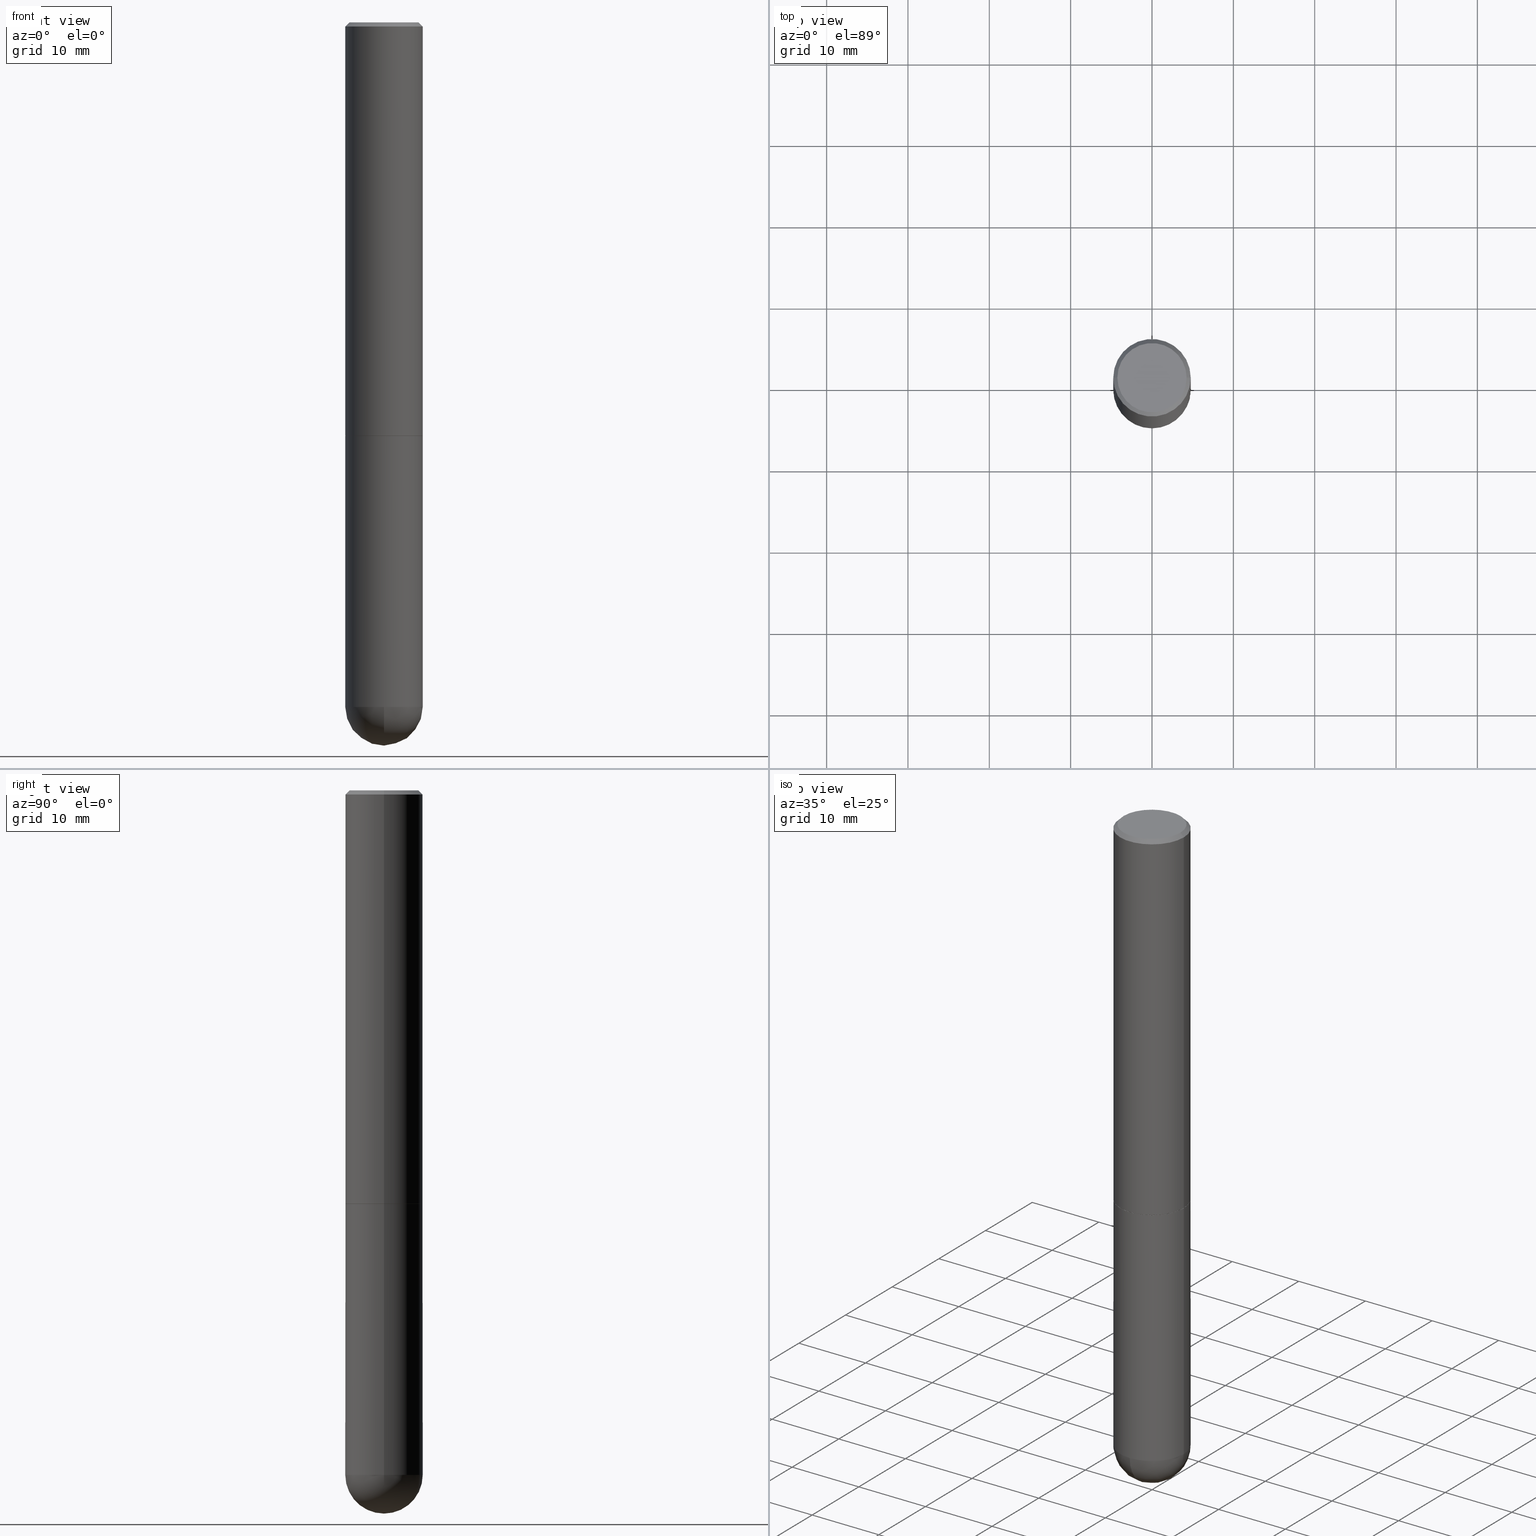
[diagram: canonical four-view strip — front | top / right | iso, engineering-drawing reading convention]
A machine part, canonical four-view strip (front | top / right | iso — engineering-drawing reading convention). The complete STEP part file that produces these views, byte-faithful:
ISO-10303-21;
HEADER;
FILE_DESCRIPTION (( 'STEP AP203' ),
    '1' );
FILE_NAME ('34977.STEP',
    '2024-02-21T18:37:31',
    ( '' ),
    ( '' ),
    'SwSTEP 2.0',
    'SolidWorks 2023',
    '' );
FILE_SCHEMA (( 'CONFIG_CONTROL_DESIGN' ));
ENDSEC;

DATA;
#1 = DIRECTION ( 'NONE',  ( -2.445468806185136877E-29, 3.491481338843145188E-15, 1.000000000000000000 ) ) ;
#2 = ORIENTED_EDGE ( 'NONE', *, *, #153, .F. ) ;
#3 = CARTESIAN_POINT ( 'NONE',  ( 0.1875000000000000278, -8.292268179752465385E-15, -1.999999999999999778 ) ) ;
#4 = AXIS2_PLACEMENT_3D ( 'NONE', #218, #41, #311 ) ;
#5 = EDGE_LOOP ( 'NONE', ( #408, #17, #317, #43 ) ) ;
#6 = EDGE_CURVE ( 'NONE', #279, #151, #190, .T. ) ;
#7 = DIRECTION ( 'NONE',  ( -2.445468806185136597E-29, 3.491481338843145583E-15, 1.000000000000000000 ) ) ;
#8 = EDGE_CURVE ( 'NONE', #270, #154, #108, .T. ) ;
#9 = DIRECTION ( 'NONE',  ( -2.445468806185136877E-29, 3.491481338843145188E-15, 1.000000000000000000 ) ) ;
#10 = VECTOR ( 'NONE', #77, 39.37007874015748854 ) ;
#11 = ORIENTED_EDGE ( 'NONE', *, *, #234, .F. ) ;
#12 = LOCAL_TIME ( 13, 37, 31.00000000000000000, #82 ) ;
#13 = PERSON_AND_ORGANIZATION_ROLE ( 'classification_officer' ) ;
#14 = CARTESIAN_POINT ( 'NONE',  ( 7.769495642574377609E-29, -1.203971430305797135E-14, -3.312499999999999556 ) ) ;
#15 = CARTESIAN_POINT ( 'NONE',  ( -0.1874999999999999722, 1.332267629550187651E-15, -9.223003294227946589E-30 ) ) ;
#16 = EDGE_CURVE ( 'NONE', #151, #279, #216, .T. ) ;
#17 = ORIENTED_EDGE ( 'NONE', *, *, #88, .T. ) ;
#18 = VECTOR ( 'NONE', #200, 39.37007874015748143 ) ;
#19 = COORDINATED_UNIVERSAL_TIME_OFFSET ( 5, 0, .BEHIND. ) ;
#20 = ORIENTED_EDGE ( 'NONE', *, *, #378, .F. ) ;
#21 = VERTEX_POINT ( 'NONE', #32 ) ;
#22 = EDGE_LOOP ( 'NONE', ( #343, #159, #142, #384 ) ) ;
#23 = AXIS2_PLACEMENT_3D ( 'NONE', #14, #249, #365 ) ;
#24 =( GEOMETRIC_REPRESENTATION_CONTEXT ( 3 ) GLOBAL_UNCERTAINTY_ASSIGNED_CONTEXT ( ( #155 ) ) GLOBAL_UNIT_ASSIGNED_CONTEXT ( ( #199, #168, #162 ) ) REPRESENTATION_CONTEXT ( 'NONE', 'WORKASPACE' ) );
#25 = PERSON_AND_ORGANIZATION_ROLE ( 'design_owner' ) ;
#26 = ORIENTED_EDGE ( 'NONE', *, *, #75, .F. ) ;
#27 = CARTESIAN_POINT ( 'NONE',  ( -6.263108486011318528E-46, 8.942059022282683748E-32, 2.561107494060246767E-17 ) ) ;
#28 = PERSON_AND_ORGANIZATION ( #409, #292 ) ;
#29 = ORIENTED_EDGE ( 'NONE', *, *, #16, .T. ) ;
#30 = ADVANCED_FACE ( 'NONE', ( #380 ), #262, .T. ) ;
#31 = DIRECTION ( 'NONE',  ( -2.445468806185136597E-29, 3.491481338843145583E-15, 1.000000000000000000 ) ) ;
#32 = CARTESIAN_POINT ( 'NONE',  ( 0.1864999999999999991, -8.285285217074779370E-15, -2.000000000000000000 ) ) ;
#33 = LINE ( 'NONE', #349, #336 ) ;
#34 = PRODUCT_DEFINITION_SHAPE ( 'NONE', 'NONE',  #201 ) ;
#35 = ORIENTED_EDGE ( 'NONE', *, *, #226, .F. ) ;
#36 = CARTESIAN_POINT ( 'NONE',  ( -0.1875000000000000278, -7.941979676751916286E-15, -1.999999999999999778 ) ) ;
#37 = PLANE ( 'NONE',  #91 ) ;
#38 = AXIS2_PLACEMENT_3D ( 'NONE', #405, #286, #129 ) ;
#39 = LOCAL_TIME ( 13, 37, 31.00000000000000000, #243 ) ;
#40 = CARTESIAN_POINT ( 'NONE',  ( -0.1874999999999999722, 1.239475875289311710E-15, -0.02000000000000003858 ) ) ;
#41 = DIRECTION ( 'NONE',  ( -2.445468806185136597E-29, 3.491481338843145583E-15, 1.000000000000000000 ) ) ;
#42 = CARTESIAN_POINT ( 'NONE',  ( 8.100615420488263856E-29, -1.156553193491791947E-14, -3.312499999999999556 ) ) ;
#43 = ORIENTED_EDGE ( 'NONE', *, *, #229, .F. ) ;
#44 = ADVANCED_FACE ( 'NONE', ( #245 ), #184, .T. ) ;
#45 = DATE_AND_TIME ( #121, #80 ) ;
#46 = CIRCLE ( 'NONE', #160, 0.1874999999999999722 ) ;
#47 = CIRCLE ( 'NONE', #282, 0.1874999999999999722 ) ;
#48 = CYLINDRICAL_SURFACE ( 'NONE', #293, 0.1874999999999999722 ) ;
#49 = APPROVAL_ROLE ( '' ) ;
#50 = DIRECTION ( 'NONE',  ( 1.000000000000000000, -6.982962677686266711E-15, 4.876176775795935793E-29 ) ) ;
#51 = ORIENTED_EDGE ( 'NONE', *, *, #8, .F. ) ;
#52 = VERTEX_POINT ( 'NONE', #274 ) ;
#53 = PERSON_AND_ORGANIZATION ( #409, #292 ) ;
#54 = ORIENTED_EDGE ( 'NONE', *, *, #156, .T. ) ;
#55 = ORIENTED_EDGE ( 'NONE', *, *, #166, .T. ) ;
#56 = ADVANCED_FACE ( 'NONE', ( #361 ), #110, .T. ) ;
#57 = AXIS2_PLACEMENT_3D ( 'NONE', #323, #164, #377 ) ;
#58 = DIRECTION ( 'NONE',  ( 1.000000000000000000, -6.982962677686268288E-15, 0.000000000000000000 ) ) ;
#59 = EDGE_LOOP ( 'NONE', ( #312, #316 ) ) ;
#60 = DIRECTION ( 'NONE',  ( -2.445468806185136597E-29, 3.491481338843145583E-15, 1.000000000000000000 ) ) ;
#61 = EDGE_CURVE ( 'NONE', #309, #186, #298, .T. ) ;
#62 = APPLICATION_CONTEXT ( 'configuration controlled 3d designs of mechanical parts and assemblies' ) ;
#63 = CARTESIAN_POINT ( 'NONE',  ( 0.1875000000000001110, -1.309305502066175797E-15, 9.142831454617385217E-30 ) ) ;
#64 = APPLICATION_PROTOCOL_DEFINITION ( 'international standard', 'config_control_design', 1994, #97 ) ;
#65 = CIRCLE ( 'NONE', #372, 0.1864999999999999991 ) ;
#66 = CC_DESIGN_APPROVAL ( #375, ( #137 ) ) ;
#67 = CARTESIAN_POINT ( 'NONE',  ( 8.100615420488263856E-29, -1.156553193491791947E-14, -3.312499999999999556 ) ) ;
#68 = PERSON_AND_ORGANIZATION ( #409, #292 ) ;
#69 = CC_DESIGN_DATE_AND_TIME_ASSIGNMENT ( #149, #334, ( #306 ) ) ;
#70 = CARTESIAN_POINT ( 'NONE',  ( 4.888492143564087030E-29, -6.979471196347446580E-15, -1.998999999999999666 ) ) ;
#71 = DATE_AND_TIME ( #127, #39 ) ;
#72 = CARTESIAN_POINT ( 'NONE',  ( 0.1874999999999999722, -1.356173001359025269E-15, -0.02000000000000003858 ) ) ;
#73 = ADVANCED_FACE ( 'NONE', ( #181 ), #301, .F. ) ;
#74 = DIRECTION ( 'NONE',  ( 2.438088387897960049E-29, -3.491481338843145188E-15, -1.000000000000000000 ) ) ;
#75 = EDGE_CURVE ( 'NONE', #214, #86, #46, .T. ) ;
#76 = DIRECTION ( 'NONE',  ( -7.105427357601001070E-15, -1.000000000000000000, 0.000000000000000000 ) ) ;
#77 = DIRECTION ( 'NONE',  ( 0.7071067811865232589, -2.468850131082003836E-15, 0.7071067811865715536 ) ) ;
#78 = CARTESIAN_POINT ( 'NONE',  ( 7.769495642574377609E-29, -1.203971430305797135E-14, -3.312499999999999556 ) ) ;
#79 = AXIS2_PLACEMENT_3D ( 'NONE', #261, #173, #325 ) ;
#80 = LOCAL_TIME ( 13, 37, 31.00000000000000000, #19 ) ;
#81 = CARTESIAN_POINT ( 'NONE',  ( 0.000000000000000000, 0.000000000000000000, 0.000000000000000000 ) ) ;
#82 = COORDINATED_UNIVERSAL_TIME_OFFSET ( 5, 0, .BEHIND. ) ;
#83 = ADVANCED_FACE ( 'NONE', ( #358 ), #132, .F. ) ;
#84 = VERTEX_POINT ( 'NONE', #284 ) ;
#85 = EDGE_CURVE ( 'NONE', #236, #318, #289, .T. ) ;
#86 = VERTEX_POINT ( 'NONE', #259 ) ;
#87 = AXIS2_PLACEMENT_3D ( 'NONE', #364, #219, #148 ) ;
#88 = EDGE_CURVE ( 'NONE', #228, #84, #33, .T. ) ;
#89 = CARTESIAN_POINT ( 'NONE',  ( 4.890937612370273194E-29, -6.982962677686291165E-15, -2.000000000000000000 ) ) ;
#90 = CALENDAR_DATE ( 2024, 21, 2 ) ;
#91 = AXIS2_PLACEMENT_3D ( 'NONE', #333, #74, #296 ) ;
#92 = AXIS2_PLACEMENT_3D ( 'NONE', #140, #386, #391 ) ;
#93 = LINE ( 'NONE', #135, #18 ) ;
#94 = CARTESIAN_POINT ( 'NONE',  ( 1.309305502066255275E-15, 0.1874999999999883149, -3.312500000000000444 ) ) ;
#95 = DIRECTION ( 'NONE',  ( -2.445468806185136597E-29, 3.491481338843145583E-15, 1.000000000000000000 ) ) ;
#96 = CARTESIAN_POINT ( 'NONE',  ( 4.890937612370272633E-29, -6.982962677686290376E-15, -1.999999999999999778 ) ) ;
#97 = APPLICATION_CONTEXT ( 'configuration controlled 3d designs of mechanical parts and assemblies' ) ;
#98 = CARTESIAN_POINT ( 'NONE',  ( 4.890937612370282792E-31, -6.982962677686303935E-17, -0.02000000000000003858 ) ) ;
#99 = DIRECTION ( 'NONE',  ( 0.000000000000000000, 0.000000000000000000, 1.000000000000000000 ) ) ;
#100 = PRODUCT ( '34977', '34977', '', ( #359 ) ) ;
#101 = AXIS2_PLACEMENT_3D ( 'NONE', #209, #60, #373 ) ;
#102 = AXIS2_PLACEMENT_3D ( 'NONE', #394, #95, #383 ) ;
#103 = DATE_AND_TIME ( #90, #265 ) ;
#104 = DESIGN_CONTEXT ( 'detailed design', #62, 'design' ) ;
#105 = CARTESIAN_POINT ( 'NONE',  ( 8.100615420488263856E-29, -1.156553193491791947E-14, -3.312499999999999556 ) ) ;
#106 = CARTESIAN_POINT ( 'NONE',  ( 0.000000000000000000, 0.000000000000000000, 0.000000000000000000 ) ) ;
#107 = DIRECTION ( 'NONE',  ( 1.000000000000000000, -6.982962677686263555E-15, 0.000000000000000000 ) ) ;
#108 = CIRCLE ( 'NONE', #247, 0.1875000000000002776 ) ;
#109 = LOCAL_TIME ( 13, 37, 31.00000000000000000, #213 ) ;
#110 = SPHERICAL_SURFACE ( 'NONE', #23, 0.1875000000000002776 ) ;
#111 = EDGE_LOOP ( 'NONE', ( #331, #55, #54, #130 ) ) ;
#112 = CARTESIAN_POINT ( 'NONE',  ( 8.236038227695147558E-29, -1.268288599034905401E-14, -3.500000000000000000 ) ) ;
#113 = APPROVAL_STATUS ( 'not_yet_approved' ) ;
#114 = CYLINDRICAL_SURFACE ( 'NONE', #272, 0.1875000000000001110 ) ;
#115 = ORIENTED_EDGE ( 'NONE', *, *, #378, .T. ) ;
#116 = CARTESIAN_POINT ( 'NONE',  ( 0.000000000000000000, 0.000000000000000000, 0.000000000000000000 ) ) ;
#117 = AXIS2_PLACEMENT_3D ( 'NONE', #89, #347, #58 ) ;
#118 = EDGE_CURVE ( 'NONE', #309, #318, #93, .T. ) ;
#119 = CALENDAR_DATE ( 2024, 21, 2 ) ;
#120 = EDGE_LOOP ( 'NONE', ( #11, #283 ) ) ;
#121 = CALENDAR_DATE ( 2024, 21, 2 ) ;
#122 = AXIS2_PLACEMENT_3D ( 'NONE', #42, #7, #107 ) ;
#123 = CC_DESIGN_SECURITY_CLASSIFICATION ( #306, ( #137 ) ) ;
#124 = ADVANCED_FACE ( 'NONE', ( #237 ), #324, .T. ) ;
#125 = DIRECTION ( 'NONE',  ( -2.445468806185136597E-29, 3.491481338843145583E-15, 1.000000000000000000 ) ) ;
#126 = APPROVAL_STATUS ( 'not_yet_approved' ) ;
#127 = CALENDAR_DATE ( 2024, 21, 2 ) ;
#128 = CONICAL_SURFACE ( 'NONE', #362, 0.1874999999999999722, 0.7853981633974473908 ) ;
#129 = DIRECTION ( 'NONE',  ( 1.000000000000000000, -6.982962677686268288E-15, 0.000000000000000000 ) ) ;
#130 = ORIENTED_EDGE ( 'NONE', *, *, #85, .F. ) ;
#131 = CC_DESIGN_DATE_AND_TIME_ASSIGNMENT ( #328, #350, ( #201 ) ) ;
#132 = PLANE ( 'NONE',  #57 ) ;
#133 = DIRECTION ( 'NONE',  ( 1.000000000000000000, 0.000000000000000000, 0.000000000000000000 ) ) ;
#134 = MANIFOLD_SOLID_BREP ( 'Body-Move/Copy2[1]', #264 ) ;
#135 = CARTESIAN_POINT ( 'NONE',  ( 0.1874999999999999722, -1.356173001359025269E-15, -0.02000000000000003858 ) ) ;
#136 = AXIS2_PLACEMENT_3D ( 'NONE', #70, #125, #370 ) ;
#137 = PRODUCT_DEFINITION_FORMATION_WITH_SPECIFIED_SOURCE ( 'ANY', '', #100, .NOT_KNOWN. ) ;
#138 = CARTESIAN_POINT ( 'NONE',  ( 4.890937612370282792E-31, -6.982962677686303935E-17, -0.02000000000000003858 ) ) ;
#139 = ORIENTED_EDGE ( 'NONE', *, *, #238, .F. ) ;
#140 = CARTESIAN_POINT ( 'NONE',  ( 7.769495642574377609E-29, -1.203971430305797135E-14, -3.312499999999999556 ) ) ;
#141 = CARTESIAN_POINT ( 'NONE',  ( -1.332267629550109160E-15, -0.1875000000000119349, -3.312499999999999112 ) ) ;
#142 = ORIENTED_EDGE ( 'NONE', *, *, #229, .T. ) ;
#143 = LINE ( 'NONE', #387, #314 ) ;
#144 = CIRCLE ( 'NONE', #233, 0.1674999999999999545 ) ;
#145 = CONICAL_SURFACE ( 'NONE', #315, 0.1864999999999999991, 0.7853981633974141952 ) ;
#146 = DIRECTION ( 'NONE',  ( -2.445468806185136597E-29, 3.491481338843145583E-15, 1.000000000000000000 ) ) ;
#147 = EDGE_CURVE ( 'NONE', #186, #309, #144, .T. ) ;
#148 = DIRECTION ( 'NONE',  ( 1.000000000000000000, -6.982962677686266711E-15, 0.000000000000000000 ) ) ;
#149 = DATE_AND_TIME ( #119, #12 ) ;
#150 = DIRECTION ( 'NONE',  ( -2.445468806185136877E-29, 3.491481338843145188E-15, 1.000000000000000000 ) ) ;
#151 = VERTEX_POINT ( 'NONE', #36 ) ;
#152 = CIRCLE ( 'NONE', #122, 0.1874999999999999722 ) ;
#153 = EDGE_CURVE ( 'NONE', #86, #279, #327, .T. ) ;
#154 = VERTEX_POINT ( 'NONE', #94 ) ;
#155 = UNCERTAINTY_MEASURE_WITH_UNIT (LENGTH_MEASURE( 1.000000000000000082E-05 ), #199, 'distance_accuracy_value', 'NONE');
#156 = EDGE_CURVE ( 'NONE', #52, #318, #295, .T. ) ;
#157 = PERSON_AND_ORGANIZATION_ROLE ( 'design_supplier' ) ;
#158 = ORIENTED_EDGE ( 'NONE', *, *, #197, .T. ) ;
#159 = ORIENTED_EDGE ( 'NONE', *, *, #206, .T. ) ;
#160 = AXIS2_PLACEMENT_3D ( 'NONE', #67, #321, #230 ) ;
#161 = CC_DESIGN_APPROVAL ( #194, ( #306 ) ) ;
#162 =( NAMED_UNIT ( * ) SI_UNIT ( $, .STERADIAN. ) SOLID_ANGLE_UNIT ( ) );
#163 = VERTEX_POINT ( 'NONE', #263 ) ;
#164 = DIRECTION ( 'NONE',  ( 2.438088387897960049E-29, -3.491481338843145188E-15, -1.000000000000000000 ) ) ;
#165 = PERSON_AND_ORGANIZATION ( #409, #292 ) ;
#166 = EDGE_CURVE ( 'NONE', #84, #52, #223, .T. ) ;
#167 = CARTESIAN_POINT ( 'NONE',  ( 7.769495642574377609E-29, -1.203971430305797135E-14, -3.312499999999999556 ) ) ;
#168 =( NAMED_UNIT ( * ) PLANE_ANGLE_UNIT ( ) SI_UNIT ( $, .RADIAN. ) );
#169 = ORIENTED_EDGE ( 'NONE', *, *, #220, .F. ) ;
#170 = APPROVAL ( #126, 'UNSPECIFIED' ) ;
#171 = AXIS2_PLACEMENT_3D ( 'NONE', #172, #31, #410 ) ;
#172 = CARTESIAN_POINT ( 'NONE',  ( 4.890937612370273194E-29, -6.982962677686291165E-15, -2.000000000000000000 ) ) ;
#173 = DIRECTION ( 'NONE',  ( -2.445468806185136597E-29, 3.491481338843145583E-15, 1.000000000000000000 ) ) ;
#174 = COORDINATED_UNIVERSAL_TIME_OFFSET ( 5, 0, .BEHIND. ) ;
#175 = ORIENTED_EDGE ( 'NONE', *, *, #6, .T. ) ;
#176 = LINE ( 'NONE', #307, #332 ) ;
#177 = ORIENTED_EDGE ( 'NONE', *, *, #302, .T. ) ;
#178 = VECTOR ( 'NONE', #294, 39.37007874015748143 ) ;
#179 = CARTESIAN_POINT ( 'NONE',  ( -0.1864999999999999991, -5.652502021145481134E-15, -2.000000000000000000 ) ) ;
#180 = ADVANCED_FACE ( 'NONE', ( #381 ), #368, .T. ) ;
#181 = FACE_OUTER_BOUND ( 'NONE', #120, .T. ) ;
#182 = CARTESIAN_POINT ( 'NONE',  ( 0.1864999999999999991, -8.285285217074779370E-15, -2.000000000000000000 ) ) ;
#183 = LINE ( 'NONE', #182, #10 ) ;
#184 = CYLINDRICAL_SURFACE ( 'NONE', #4, 0.1874999999999999722 ) ;
#185 = DIRECTION ( 'NONE',  ( -2.445468806185136597E-29, 3.491481338843145583E-15, 1.000000000000000000 ) ) ;
#186 = VERTEX_POINT ( 'NONE', #244 ) ;
#187 = DIRECTION ( 'NONE',  ( -2.438088387897960049E-29, 3.491481338843145188E-15, 1.000000000000000000 ) ) ;
#188 = EDGE_LOOP ( 'NONE', ( #139, #412, #169, #26 ) ) ;
#189 = PERSON_AND_ORGANIZATION ( #409, #292 ) ;
#190 = CIRCLE ( 'NONE', #253, 0.1875000000000000278 ) ;
#191 = ORIENTED_EDGE ( 'NONE', *, *, #268, .F. ) ;
#192 = ORIENTED_EDGE ( 'NONE', *, *, #393, .F. ) ;
#193 = ORIENTED_EDGE ( 'NONE', *, *, #75, .T. ) ;
#194 = APPROVAL ( #113, 'UNSPECIFIED' ) ;
#195 = ORIENTED_EDGE ( 'NONE', *, *, #393, .T. ) ;
#196 = CIRCLE ( 'NONE', #87, 0.1874999999999999722 ) ;
#197 = EDGE_CURVE ( 'NONE', #52, #84, #256, .T. ) ;
#198 = DIRECTION ( 'NONE',  ( 1.000000000000000000, -6.982962677686265922E-15, 4.876176775795935793E-29 ) ) ;
#199 =( CONVERSION_BASED_UNIT ( 'INCH', #322 ) LENGTH_UNIT ( ) NAMED_UNIT ( #367 ) );
#200 = DIRECTION ( 'NONE',  ( 0.7071067811865469066, -7.319954787623254468E-15, -0.7071067811865482389 ) ) ;
#201 = PRODUCT_DEFINITION ( 'UNKNOWN', '', #137, #104 ) ;
#202 = PERSON_AND_ORGANIZATION ( #409, #292 ) ;
#203 = ORIENTED_EDGE ( 'NONE', *, *, #118, .T. ) ;
#204 = APPROVAL_ROLE ( '' ) ;
#205 = EDGE_LOOP ( 'NONE', ( #399, #396, #339, #398 ) ) ;
#206 = EDGE_CURVE ( 'NONE', #228, #21, #207, .T. ) ;
#207 = CIRCLE ( 'NONE', #117, 0.1864999999999999991 ) ;
#208 = APPROVAL_PERSON_ORGANIZATION ( #202, #375, #371 ) ;
#209 = CARTESIAN_POINT ( 'NONE',  ( 4.890937612370282792E-31, -6.982962677686303935E-17, -0.02000000000000003858 ) ) ;
#210 = PERSON_AND_ORGANIZATION_ROLE ( 'creator' ) ;
#211 = CC_DESIGN_PERSON_AND_ORGANIZATION_ASSIGNMENT ( #379, #25, ( #100 ) ) ;
#212 = DIRECTION ( 'NONE',  ( -0.7071067811865232589, 7.493145998870265808E-15, 0.7071067811865715536 ) ) ;
#213 = COORDINATED_UNIVERSAL_TIME_OFFSET ( 5, 0, .BEHIND. ) ;
#214 = VERTEX_POINT ( 'NONE', #141 ) ;
#215 = DIRECTION ( 'NONE',  ( 1.000000000000000000, -6.982962677686263555E-15, 0.000000000000000000 ) ) ;
#216 = CIRCLE ( 'NONE', #79, 0.1875000000000000278 ) ;
#217 = DIRECTION ( 'NONE',  ( 1.000000000000000000, -6.982962677686268288E-15, 0.000000000000000000 ) ) ;
#218 = CARTESIAN_POINT ( 'NONE',  ( 0.000000000000000000, 0.000000000000000000, 0.000000000000000000 ) ) ;
#219 = DIRECTION ( 'NONE',  ( -2.445468806185136597E-29, 3.491481338843145583E-15, 1.000000000000000000 ) ) ;
#220 = EDGE_CURVE ( 'NONE', #86, #154, #152, .T. ) ;
#221 = DIRECTION ( 'NONE',  ( -1.000000000000000000, 6.982962677686266711E-15, 0.000000000000000000 ) ) ;
#222 = SECURITY_CLASSIFICATION_LEVEL ( 'unclassified' ) ;
#223 = CIRCLE ( 'NONE', #38, 0.1875000000000002776 ) ;
#224 = CIRCLE ( 'NONE', #102, 0.1874999999999999722 ) ;
#225 = DIRECTION ( 'NONE',  ( -2.445468806185136597E-29, 3.491481338843145583E-15, 1.000000000000000000 ) ) ;
#226 = EDGE_CURVE ( 'NONE', #318, #236, #196, .T. ) ;
#227 = ORIENTED_EDGE ( 'NONE', *, *, #153, .T. ) ;
#228 = VERTEX_POINT ( 'NONE', #179 ) ;
#229 = EDGE_CURVE ( 'NONE', #21, #52, #183, .T. ) ;
#230 = DIRECTION ( 'NONE',  ( 1.000000000000000000, -6.982962677686263555E-15, 0.000000000000000000 ) ) ;
#231 = APPROVAL_DATE_TIME ( #103, #375 ) ;
#232 = ORIENTED_EDGE ( 'NONE', *, *, #6, .F. ) ;
#233 = AXIS2_PLACEMENT_3D ( 'NONE', #27, #288, #400 ) ;
#234 = EDGE_CURVE ( 'NONE', #21, #228, #65, .T. ) ;
#235 = CARTESIAN_POINT ( 'NONE',  ( 0.1874999999999999722, -1.309305502066174811E-15, 9.142831454617378210E-30 ) ) ;
#236 = VERTEX_POINT ( 'NONE', #40 ) ;
#237 = FACE_OUTER_BOUND ( 'NONE', #205, .T. ) ;
#238 = EDGE_CURVE ( 'NONE', #270, #214, #346, .T. ) ;
#239 =( LENGTH_UNIT ( ) NAMED_UNIT ( * ) SI_UNIT ( $, .METRE. ) );
#240 = ADVANCED_BREP_SHAPE_REPRESENTATION ( '34977', ( #134, #276, #406 ), #24 ) ;
#241 = DIRECTION ( 'NONE',  ( -1.000000000000000000, 6.982962677686266711E-15, 0.000000000000000000 ) ) ;
#242 = PRODUCT_RELATED_PRODUCT_CATEGORY ( 'detail', '', ( #100 ) ) ;
#243 = COORDINATED_UNIVERSAL_TIME_OFFSET ( 5, 0, .BEHIND. ) ;
#244 = CARTESIAN_POINT ( 'NONE',  ( -0.1674999999999999545, 1.204561061900880455E-15, 2.561107494059416614E-17 ) ) ;
#245 = FACE_OUTER_BOUND ( 'NONE', #388, .T. ) ;
#246 = AXIS2_PLACEMENT_3D ( 'NONE', #106, #146, #50 ) ;
#247 = AXIS2_PLACEMENT_3D ( 'NONE', #167, #287, #403 ) ;
#248 = CARTESIAN_POINT ( 'NONE',  ( 4.890937612370273194E-29, -6.982962677686291165E-15, -2.000000000000000000 ) ) ;
#249 = DIRECTION ( 'NONE',  ( -1.000000000000000000, 6.982962677686266711E-15, -4.883557194083112340E-29 ) ) ;
#250 = SPHERICAL_SURFACE ( 'NONE', #92, 0.1875000000000002776 ) ;
#251 = DIRECTION ( 'NONE',  ( 1.000000000000000000, -6.982962677686266711E-15, 4.875370901645442309E-29 ) ) ;
#252 = LINE ( 'NONE', #15, #369 ) ;
#253 = AXIS2_PLACEMENT_3D ( 'NONE', #96, #320, #353 ) ;
#254 = ORIENTED_EDGE ( 'NONE', *, *, #16, .F. ) ;
#255 = SHAPE_DEFINITION_REPRESENTATION ( #34, #240 ) ;
#256 = CIRCLE ( 'NONE', #136, 0.1875000000000002776 ) ;
#257 = APPROVAL_PERSON_ORGANIZATION ( #189, #194, #49 ) ;
#258 = ADVANCED_FACE ( 'NONE', ( #338 ), #37, .F. ) ;
#259 = CARTESIAN_POINT ( 'NONE',  ( 0.1874999999999999722, -1.058355280836828072E-14, -3.312499999999999556 ) ) ;
#260 = APPROVAL_STATUS ( 'not_yet_approved' ) ;
#261 = CARTESIAN_POINT ( 'NONE',  ( 4.890937612370272633E-29, -6.982962677686290376E-15, -1.999999999999999778 ) ) ;
#262 = CYLINDRICAL_SURFACE ( 'NONE', #246, 0.1875000000000001110 ) ;
#263 = CARTESIAN_POINT ( 'NONE',  ( -0.1874999999999999722, -7.941979676751917864E-15, -3.312499999999999556 ) ) ;
#264 = CLOSED_SHELL ( 'NONE', ( #357, #56, #330, #83, #44 ) ) ;
#265 = LOCAL_TIME ( 13, 37, 31.00000000000000000, #174 ) ;
#266 = ORIENTED_EDGE ( 'NONE', *, *, #342, .F. ) ;
#267 = FACE_OUTER_BOUND ( 'NONE', #291, .T. ) ;
#268 = EDGE_CURVE ( 'NONE', #186, #236, #176, .T. ) ;
#269 = DIRECTION ( 'NONE',  ( -2.445468806185136597E-29, 3.491481338843145583E-15, 1.000000000000000000 ) ) ;
#270 = VERTEX_POINT ( 'NONE', #112 ) ;
#271 = CLOSED_SHELL ( 'NONE', ( #180, #30, #297, #124, #354, #397, #73, #258 ) ) ;
#272 = AXIS2_PLACEMENT_3D ( 'NONE', #116, #225, #366 ) ;
#273 = CARTESIAN_POINT ( 'NONE',  ( 0.1674999999999999545, -1.252653207992878091E-15, 2.561107494061093868E-17 ) ) ;
#274 = CARTESIAN_POINT ( 'NONE',  ( 0.1875000000000002776, -8.288776698413623955E-15, -1.998999999999999666 ) ) ;
#275 = FACE_OUTER_BOUND ( 'NONE', #111, .T. ) ;
#276 = MANIFOLD_SOLID_BREP ( 'Body-Move/Copy2[2]', #271 ) ;
#277 = FACE_OUTER_BOUND ( 'NONE', #390, .T. ) ;
#278 = APPROVAL_DATE_TIME ( #45, #194 ) ;
#279 = VERTEX_POINT ( 'NONE', #3 ) ;
#280 = APPROVAL_PERSON_ORGANIZATION ( #165, #170, #204 ) ;
#281 = AXIS2_PLACEMENT_3D ( 'NONE', #308, #335, #251 ) ;
#282 = AXIS2_PLACEMENT_3D ( 'NONE', #105, #360, #215 ) ;
#283 = ORIENTED_EDGE ( 'NONE', *, *, #206, .F. ) ;
#284 = CARTESIAN_POINT ( 'NONE',  ( -0.1875000000000002776, -2.192382782011961963E-15, -1.998999999999999666 ) ) ;
#285 = DIRECTION ( 'NONE',  ( -2.445468806185136597E-29, 3.491481338843145583E-15, 1.000000000000000000 ) ) ;
#286 = DIRECTION ( 'NONE',  ( -2.445468806185136597E-29, 3.491481338843145583E-15, 1.000000000000000000 ) ) ;
#287 = DIRECTION ( 'NONE',  ( 1.000000000000000000, -6.982962677686265922E-15, 4.883557194083112340E-29 ) ) ;
#288 = DIRECTION ( 'NONE',  ( -2.445468806185136597E-29, 3.491481338843145583E-15, 1.000000000000000000 ) ) ;
#289 = CIRCLE ( 'NONE', #101, 0.1874999999999999722 ) ;
#290 = PERSON_AND_ORGANIZATION_ROLE ( 'creator' ) ;
#291 = EDGE_LOOP ( 'NONE', ( #340, #203, #385, #191 ) ) ;
#292 = ORGANIZATION ( 'UNSPECIFIED', 'UNSPECIFIED', '' ) ;
#293 = AXIS2_PLACEMENT_3D ( 'NONE', #81, #185, #310 ) ;
#294 = DIRECTION ( 'NONE',  ( -2.445468806185136877E-29, 3.491481338843145188E-15, 1.000000000000000000 ) ) ;
#295 = LINE ( 'NONE', #63, #382 ) ;
#296 = DIRECTION ( 'NONE',  ( -1.000000000000000000, 6.982962677686265922E-15, -4.876176775795935793E-29 ) ) ;
#297 = ADVANCED_FACE ( 'NONE', ( #267 ), #128, .T. ) ;
#298 = CIRCLE ( 'NONE', #281, 0.1674999999999999545 ) ;
#299 = FACE_OUTER_BOUND ( 'NONE', #188, .T. ) ;
#300 = DIRECTION ( 'NONE',  ( -0.7071067811865469066, 2.468850131082249961E-15, -0.7071067811865482389 ) ) ;
#301 = PLANE ( 'NONE',  #305 ) ;
#302 = EDGE_CURVE ( 'NONE', #84, #236, #143, .T. ) ;
#303 = DIRECTION ( 'NONE',  ( 2.445468806185136597E-29, -3.491481338843145583E-15, -1.000000000000000000 ) ) ;
#304 = ORIENTED_EDGE ( 'NONE', *, *, #342, .T. ) ;
#305 = AXIS2_PLACEMENT_3D ( 'NONE', #392, #187, #198 ) ;
#306 = SECURITY_CLASSIFICATION ( '', '', #222 ) ;
#307 = CARTESIAN_POINT ( 'NONE',  ( -0.1874999999999999722, 1.239475875289311710E-15, -0.02000000000000003858 ) ) ;
#308 = CARTESIAN_POINT ( 'NONE',  ( -6.263108486011318528E-46, 8.942059022282683748E-32, 2.561107494060246767E-17 ) ) ;
#309 = VERTEX_POINT ( 'NONE', #273 ) ;
#310 = DIRECTION ( 'NONE',  ( 1.000000000000000000, -6.982962677686266711E-15, 4.876176775795935793E-29 ) ) ;
#311 = DIRECTION ( 'NONE',  ( 1.000000000000000000, -6.982962677686266711E-15, 4.876176775795935793E-29 ) ) ;
#312 = ORIENTED_EDGE ( 'NONE', *, *, #147, .T. ) ;
#313 = ORIENTED_EDGE ( 'NONE', *, *, #156, .F. ) ;
#314 = VECTOR ( 'NONE', #9, 39.37007874015748143 ) ;
#315 = AXIS2_PLACEMENT_3D ( 'NONE', #401, #285, #348 ) ;
#316 = ORIENTED_EDGE ( 'NONE', *, *, #61, .T. ) ;
#317 = ORIENTED_EDGE ( 'NONE', *, *, #197, .F. ) ;
#318 = VERTEX_POINT ( 'NONE', #72 ) ;
#319 = ORIENTED_EDGE ( 'NONE', *, *, #220, .T. ) ;
#320 = DIRECTION ( 'NONE',  ( -2.445468806185136597E-29, 3.491481338843145583E-15, 1.000000000000000000 ) ) ;
#321 = DIRECTION ( 'NONE',  ( -2.445468806185136597E-29, 3.491481338843145583E-15, 1.000000000000000000 ) ) ;
#322 = LENGTH_MEASURE_WITH_UNIT ( LENGTH_MEASURE( 0.02539999999999999897 ), #239 );
#323 = CARTESIAN_POINT ( 'NONE',  ( 1.309305502066224115E-15, 0.1874999999999930611, -2.000000000000000444 ) ) ;
#324 = CONICAL_SURFACE ( 'NONE', #404, 0.1874999999999999722, 0.7853981633974473908 ) ;
#325 = DIRECTION ( 'NONE',  ( 1.000000000000000000, -6.982962677686266711E-15, 0.000000000000000000 ) ) ;
#326 = CC_DESIGN_PERSON_AND_ORGANIZATION_ASSIGNMENT ( #53, #13, ( #306 ) ) ;
#327 = LINE ( 'NONE', #235, #178 ) ;
#328 = DATE_AND_TIME ( #374, #109 ) ;
#329 = ORIENTED_EDGE ( 'NONE', *, *, #238, .T. ) ;
#330 = ADVANCED_FACE ( 'NONE', ( #299 ), #250, .T. ) ;
#331 = ORIENTED_EDGE ( 'NONE', *, *, #302, .F. ) ;
#332 = VECTOR ( 'NONE', #300, 39.37007874015748143 ) ;
#333 = CARTESIAN_POINT ( 'NONE',  ( 1.169646248512449398E-15, 0.1674999999999999545, -5.720175867859254897E-16 ) ) ;
#334 = DATE_TIME_ROLE ( 'classification_date' ) ;
#335 = DIRECTION ( 'NONE',  ( -2.445468806185136597E-29, 3.491481338843145583E-15, 1.000000000000000000 ) ) ;
#336 = VECTOR ( 'NONE', #212, 39.37007874015748854 ) ;
#337 = CC_DESIGN_APPROVAL ( #170, ( #201 ) ) ;
#338 = FACE_OUTER_BOUND ( 'NONE', #59, .T. ) ;
#339 = ORIENTED_EDGE ( 'NONE', *, *, #268, .T. ) ;
#340 = ORIENTED_EDGE ( 'NONE', *, *, #61, .F. ) ;
#341 = CC_DESIGN_PERSON_AND_ORGANIZATION_ASSIGNMENT ( #68, #210, ( #201 ) ) ;
#342 = EDGE_CURVE ( 'NONE', #154, #163, #47, .T. ) ;
#343 = ORIENTED_EDGE ( 'NONE', *, *, #88, .F. ) ;
#344 = EDGE_LOOP ( 'NONE', ( #51, #329, #192, #266 ) ) ;
#345 = EDGE_LOOP ( 'NONE', ( #158, #177, #35, #313 ) ) ;
#346 = CIRCLE ( 'NONE', #395, 0.1875000000000002776 ) ;
#347 = DIRECTION ( 'NONE',  ( -2.445468806185136597E-29, 3.491481338843145583E-15, 1.000000000000000000 ) ) ;
#348 = DIRECTION ( 'NONE',  ( 1.000000000000000000, -6.982962677686268288E-15, 0.000000000000000000 ) ) ;
#349 = CARTESIAN_POINT ( 'NONE',  ( -0.1864999999999999991, -5.657800475493703536E-15, -2.000000000000000000 ) ) ;
#350 = DATE_TIME_ROLE ( 'creation_date' ) ;
#351 = CC_DESIGN_PERSON_AND_ORGANIZATION_ASSIGNMENT ( #28, #290, ( #137 ) ) ;
#352 = FACE_OUTER_BOUND ( 'NONE', #22, .T. ) ;
#353 = DIRECTION ( 'NONE',  ( 1.000000000000000000, -6.982962677686266711E-15, 0.000000000000000000 ) ) ;
#354 = ADVANCED_FACE ( 'NONE', ( #275 ), #114, .T. ) ;
#355 = DIRECTION ( 'NONE',  ( 2.445468806185136597E-29, -3.491481338843145583E-15, -1.000000000000000000 ) ) ;
#356 = APPROVAL_DATE_TIME ( #71, #170 ) ;
#357 = ADVANCED_FACE ( 'NONE', ( #277 ), #48, .T. ) ;
#358 = FACE_OUTER_BOUND ( 'NONE', #402, .T. ) ;
#359 = MECHANICAL_CONTEXT ( 'NONE', #97, 'mechanical' ) ;
#360 = DIRECTION ( 'NONE',  ( -2.445468806185136597E-29, 3.491481338843145583E-15, 1.000000000000000000 ) ) ;
#361 = FACE_OUTER_BOUND ( 'NONE', #344, .T. ) ;
#362 = AXIS2_PLACEMENT_3D ( 'NONE', #138, #303, #221 ) ;
#363 = DIRECTION ( 'NONE',  ( -1.000000000000000000, 7.105427357601001070E-15, -4.926315508542082329E-29 ) ) ;
#364 = CARTESIAN_POINT ( 'NONE',  ( 4.890937612370282792E-31, -6.982962677686303935E-17, -0.02000000000000003858 ) ) ;
#365 = DIRECTION ( 'NONE',  ( 6.982962677686266711E-15, 1.000000000000000000, -2.913971193241876428E-15 ) ) ;
#366 = DIRECTION ( 'NONE',  ( 1.000000000000000000, -6.982962677686266711E-15, 4.876176775795935793E-29 ) ) ;
#367 = DIMENSIONAL_EXPONENTS ( 1.000000000000000000, 0.000000000000000000, 0.000000000000000000, 0.000000000000000000, 0.000000000000000000, 0.000000000000000000, 0.000000000000000000 ) ;
#368 = CONICAL_SURFACE ( 'NONE', #171, 0.1864999999999999991, 0.7853981633974141952 ) ;
#369 = VECTOR ( 'NONE', #150, 39.37007874015748143 ) ;
#370 = DIRECTION ( 'NONE',  ( 1.000000000000000000, -6.982962677686268288E-15, 0.000000000000000000 ) ) ;
#371 = APPROVAL_ROLE ( '' ) ;
#372 = AXIS2_PLACEMENT_3D ( 'NONE', #248, #269, #217 ) ;
#373 = DIRECTION ( 'NONE',  ( 1.000000000000000000, -6.982962677686266711E-15, 0.000000000000000000 ) ) ;
#374 = CALENDAR_DATE ( 2024, 21, 2 ) ;
#375 = APPROVAL ( #260, 'UNSPECIFIED' ) ;
#376 = APPLICATION_PROTOCOL_DEFINITION ( 'international standard', 'config_control_design', 1994, #62 ) ;
#377 = DIRECTION ( 'NONE',  ( -1.000000000000000000, 6.982962677686265922E-15, -4.876176775795935793E-29 ) ) ;
#378 = EDGE_CURVE ( 'NONE', #163, #151, #252, .T. ) ;
#379 = PERSON_AND_ORGANIZATION ( #409, #292 ) ;
#380 = FACE_OUTER_BOUND ( 'NONE', #345, .T. ) ;
#381 = FACE_OUTER_BOUND ( 'NONE', #5, .T. ) ;
#382 = VECTOR ( 'NONE', #1, 39.37007874015748143 ) ;
#383 = DIRECTION ( 'NONE',  ( 1.000000000000000000, -6.982962677686263555E-15, 0.000000000000000000 ) ) ;
#384 = ORIENTED_EDGE ( 'NONE', *, *, #166, .F. ) ;
#385 = ORIENTED_EDGE ( 'NONE', *, *, #226, .T. ) ;
#386 = DIRECTION ( 'NONE',  ( -1.000000000000000000, 6.982962677686266711E-15, -4.883557194083112340E-29 ) ) ;
#387 = CARTESIAN_POINT ( 'NONE',  ( -0.1875000000000001110, 1.332267629550188637E-15, -9.223003294227953596E-30 ) ) ;
#388 = EDGE_LOOP ( 'NONE', ( #20, #195, #193, #227, #254 ) ) ;
#389 = CC_DESIGN_PERSON_AND_ORGANIZATION_ASSIGNMENT ( #407, #157, ( #137 ) ) ;
#390 = EDGE_LOOP ( 'NONE', ( #304, #115, #232, #2, #319 ) ) ;
#391 = DIRECTION ( 'NONE',  ( 6.982962677686266711E-15, 1.000000000000000000, -2.913971193241876428E-15 ) ) ;
#392 = CARTESIAN_POINT ( 'NONE',  ( 4.890937612370273194E-29, -6.982962677686291165E-15, -2.000000000000000000 ) ) ;
#393 = EDGE_CURVE ( 'NONE', #163, #214, #224, .T. ) ;
#394 = CARTESIAN_POINT ( 'NONE',  ( 8.100615420488263856E-29, -1.156553193491791947E-14, -3.312499999999999556 ) ) ;
#395 = AXIS2_PLACEMENT_3D ( 'NONE', #78, #363, #76 ) ;
#396 = ORIENTED_EDGE ( 'NONE', *, *, #147, .F. ) ;
#397 = ADVANCED_FACE ( 'NONE', ( #352 ), #145, .T. ) ;
#398 = ORIENTED_EDGE ( 'NONE', *, *, #85, .T. ) ;
#399 = ORIENTED_EDGE ( 'NONE', *, *, #118, .F. ) ;
#400 = DIRECTION ( 'NONE',  ( 1.000000000000000000, -6.982962677686266711E-15, 4.875370901645442309E-29 ) ) ;
#401 = CARTESIAN_POINT ( 'NONE',  ( 4.890937612370273194E-29, -6.982962677686291165E-15, -2.000000000000000000 ) ) ;
#402 = EDGE_LOOP ( 'NONE', ( #175, #29 ) ) ;
#403 = DIRECTION ( 'NONE',  ( 6.982962677686266711E-15, 1.000000000000000000, 0.000000000000000000 ) ) ;
#404 = AXIS2_PLACEMENT_3D ( 'NONE', #98, #355, #241 ) ;
#405 = CARTESIAN_POINT ( 'NONE',  ( 4.888492143564087030E-29, -6.979471196347446580E-15, -1.998999999999999666 ) ) ;
#406 = AXIS2_PLACEMENT_3D ( 'NONE', #411, #99, #133 ) ;
#407 = PERSON_AND_ORGANIZATION ( #409, #292 ) ;
#408 = ORIENTED_EDGE ( 'NONE', *, *, #234, .T. ) ;
#409 = PERSON ( 'UNSPECIFIED', 'UNSPECIFIED', 'UNSPECIFIED', ('UNSPECIFIED'), ('UNSPECIFIED'), ('UNSPECIFIED') ) ;
#410 = DIRECTION ( 'NONE',  ( 1.000000000000000000, -6.982962677686268288E-15, 0.000000000000000000 ) ) ;
#411 = CARTESIAN_POINT ( 'NONE',  ( 0.000000000000000000, 0.000000000000000000, 0.000000000000000000 ) ) ;
#412 = ORIENTED_EDGE ( 'NONE', *, *, #8, .T. ) ;
ENDSEC;
END-ISO-10303-21;
